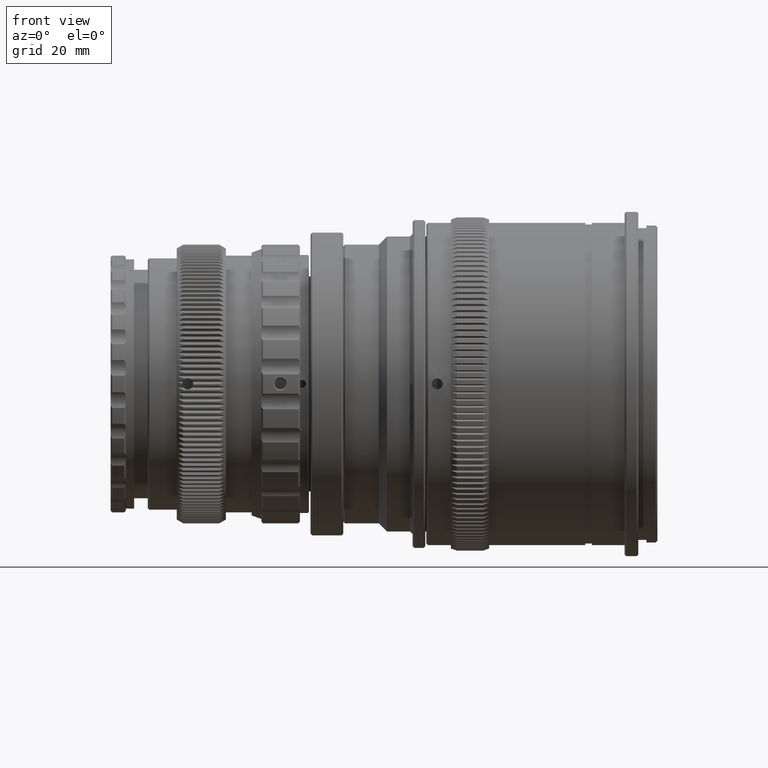
[diagram: clean part render]
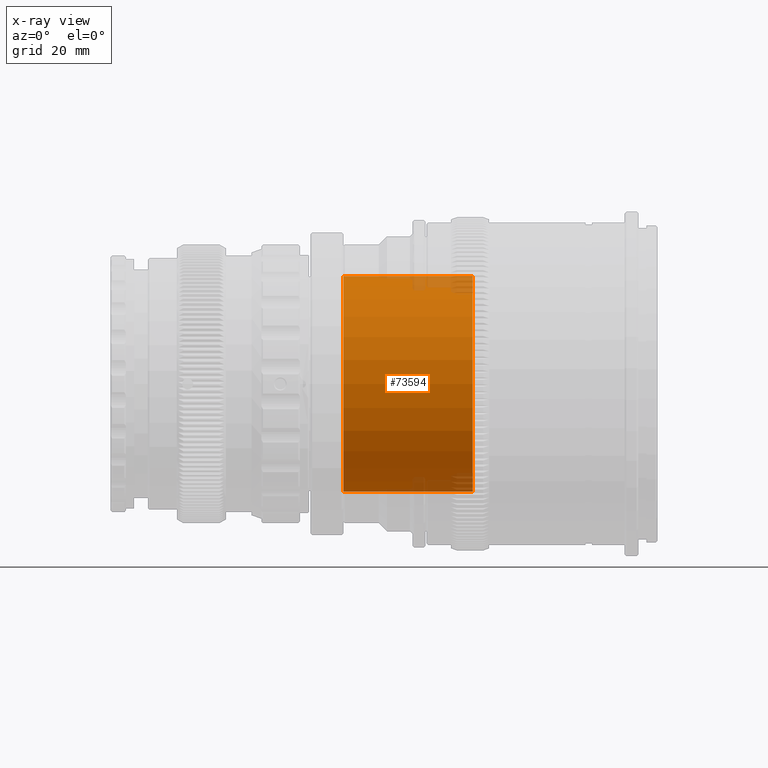
[diagram: x-ray — body ghosted, one internal face saturated and labeled with its STEP entity id]
A machine part, front view, then the same camera in x-ray: the body is ghosted and one INTERNAL B-rep face — a face not visible from any outside direction — is saturated and labeled: STEP entity #73594.
In plain terms, the highlighted cylindrical surface (partial cylindrical patch) has radius 19.75 mm, axis along (-1, -0, -0).
Its self-contained STEP definition (entity closure, byte-faithful):
#3542 = CARTESIAN_POINT ( 'NONE',  ( 4.199999999999995700, 2.437047130303233200E-015, 19.74999999999999600 ) ) ;
#4079 = DIRECTION ( 'NONE',  ( -1.000000000000000000, -0.0000000000000000000, -0.0000000000000000000 ) ) ;
#6225 = ORIENTED_EDGE ( 'NONE', *, *, #70920, .T. ) ;
#8988 = CARTESIAN_POINT ( 'NONE',  ( 4.199999999999995700, 0.0000000000000000000, 0.0000000000000000000 ) ) ;
#9593 = VECTOR ( 'NONE', #4079, 1000.000000000000000 ) ;
#10559 = EDGE_CURVE ( 'NONE', #72515, #13877, #18025, .T. ) ;
#12182 = DIRECTION ( 'NONE',  ( 0.0000000000000000000, 0.0000000000000000000, 1.000000000000000000 ) ) ;
#12926 = EDGE_LOOP ( 'NONE', ( #15274, #6225, #29841, #39430 ) ) ;
#13877 = VERTEX_POINT ( 'NONE', #77848 ) ;
#15274 = ORIENTED_EDGE ( 'NONE', *, *, #19234, .F. ) ;
#16298 = VERTEX_POINT ( 'NONE', #61042 ) ;
#17813 = AXIS2_PLACEMENT_3D ( 'NONE', #69194, #31100, #12182 ) ;
#18025 = LINE ( 'NONE', #28193, #70722 ) ;
#19234 = EDGE_CURVE ( 'NONE', #37976, #72515, #20818, .T. ) ;
#20818 = CIRCLE ( 'NONE', #52996, 19.74999999999999600 ) ;
#24624 = CARTESIAN_POINT ( 'NONE',  ( 0.0000000000000000000, 0.0000000000000000000, 0.0000000000000000000 ) ) ;
#28193 = CARTESIAN_POINT ( 'NONE',  ( 0.0000000000000000000, 0.0000000000000000000, 19.74999999999999600 ) ) ;
#28306 = FACE_OUTER_BOUND ( 'NONE', #12926, .T. ) ;
#29150 = EDGE_CURVE ( 'NONE', #13877, #16298, #46946, .T. ) ;
#29841 = ORIENTED_EDGE ( 'NONE', *, *, #29150, .F. ) ;
#31100 = DIRECTION ( 'NONE',  ( 1.000000000000000000, 0.0000000000000000000, 0.0000000000000000000 ) ) ;
#35791 = CARTESIAN_POINT ( 'NONE',  ( 0.0000000000000000000, 2.418677428316022300E-015, -19.74999999999999600 ) ) ;
#35875 = AXIS2_PLACEMENT_3D ( 'NONE', #24624, #63003, #49965 ) ;
#37976 = VERTEX_POINT ( 'NONE', #71832 ) ;
#39430 = ORIENTED_EDGE ( 'NONE', *, *, #10559, .F. ) ;
#46946 = CIRCLE ( 'NONE', #17813, 19.74999999999999600 ) ;
#49965 = DIRECTION ( 'NONE',  ( 0.0000000000000000000, 0.0000000000000000000, 1.000000000000000000 ) ) ;
#52885 = DIRECTION ( 'NONE',  ( 0.0000000000000000000, 0.0000000000000000000, 1.000000000000000000 ) ) ;
#52996 = AXIS2_PLACEMENT_3D ( 'NONE', #8988, #72347, #52885 ) ;
#53170 = CYLINDRICAL_SURFACE ( 'NONE', #35875, 19.74999999999999600 ) ;
#60344 = LINE ( 'NONE', #35791, #9593 ) ;
#61042 = CARTESIAN_POINT ( 'NONE',  ( -19.50000000000000000, 2.418677428316022300E-015, -19.74999999999999600 ) ) ;
#63003 = DIRECTION ( 'NONE',  ( -1.000000000000000000, -0.0000000000000000000, -0.0000000000000000000 ) ) ;
#69194 = CARTESIAN_POINT ( 'NONE',  ( -19.50000000000000000, 0.0000000000000000000, 0.0000000000000000000 ) ) ;
#70722 = VECTOR ( 'NONE', #72650, 1000.000000000000000 ) ;
#70920 = EDGE_CURVE ( 'NONE', #37976, #16298, #60344, .T. ) ;
#71832 = CARTESIAN_POINT ( 'NONE',  ( 4.199999999999995700, 0.0000000000000000000, -19.74999999999999600 ) ) ;
#72347 = DIRECTION ( 'NONE',  ( -1.000000000000000000, -0.0000000000000000000, -0.0000000000000000000 ) ) ;
#72515 = VERTEX_POINT ( 'NONE', #3542 ) ;
#72650 = DIRECTION ( 'NONE',  ( -1.000000000000000000, -0.0000000000000000000, -0.0000000000000000000 ) ) ;
#73594 = ADVANCED_FACE ( 'NONE', ( #28306 ), #53170, .F. ) ;
#77848 = CARTESIAN_POINT ( 'NONE',  ( -19.50000000000000000, 0.0000000000000000000, 19.74999999999999600 ) ) ;